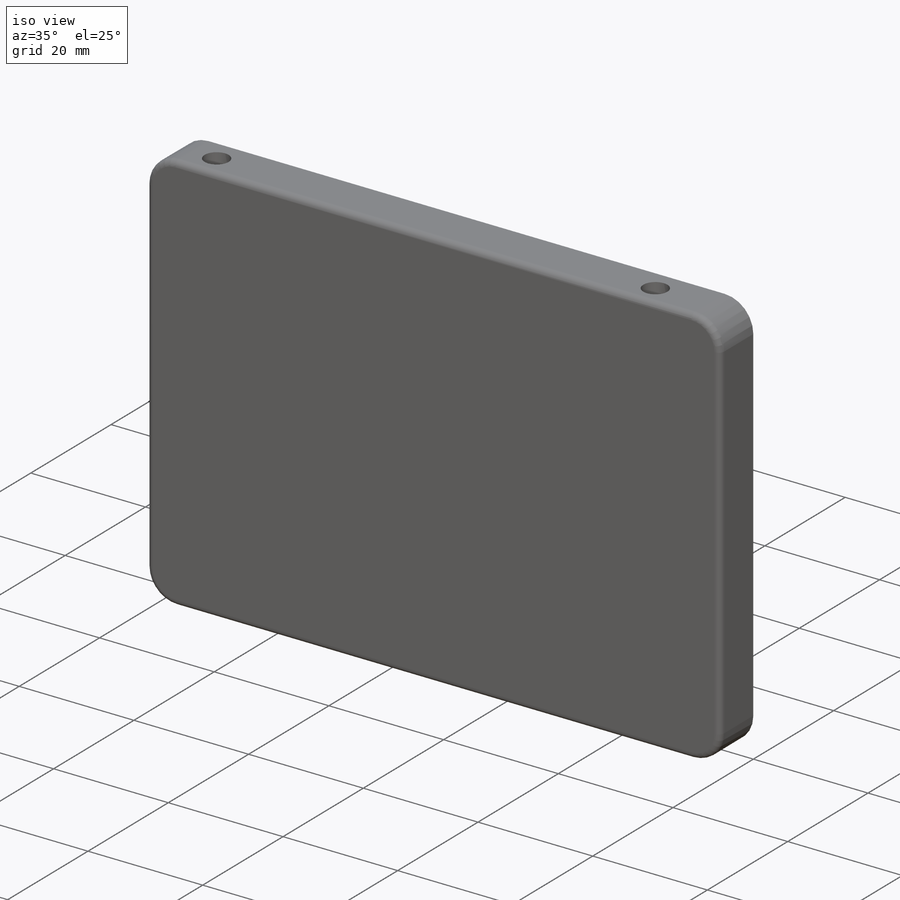
[diagram: iso view]
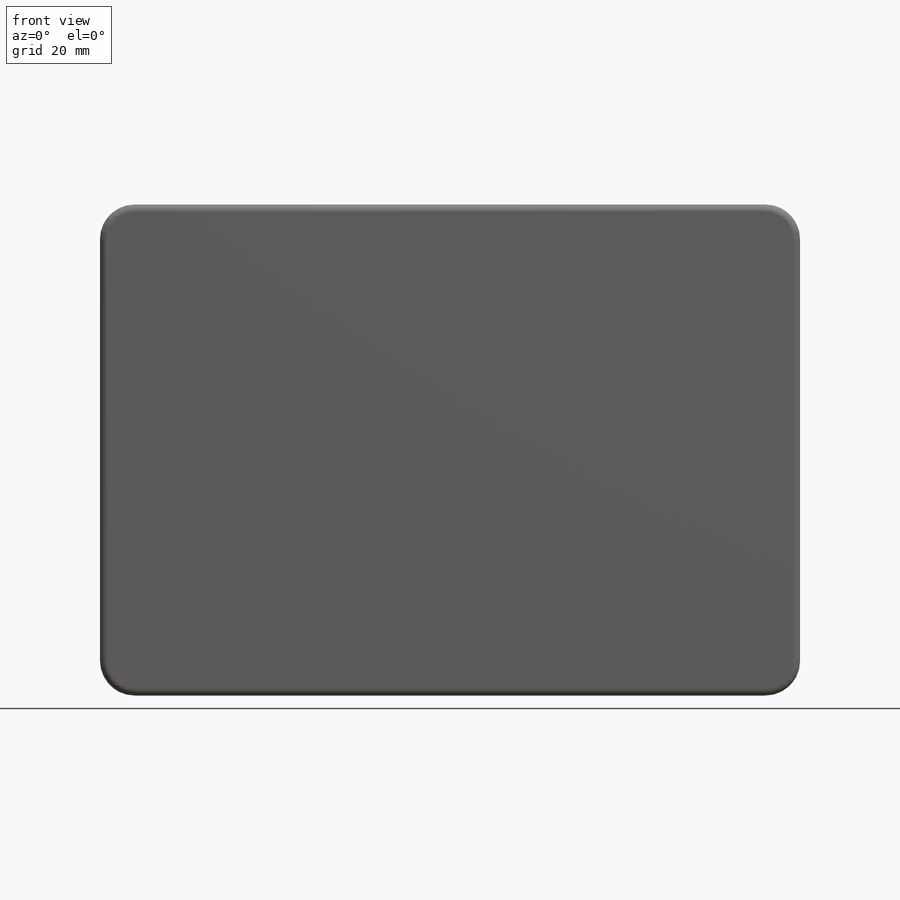
[diagram: front view]
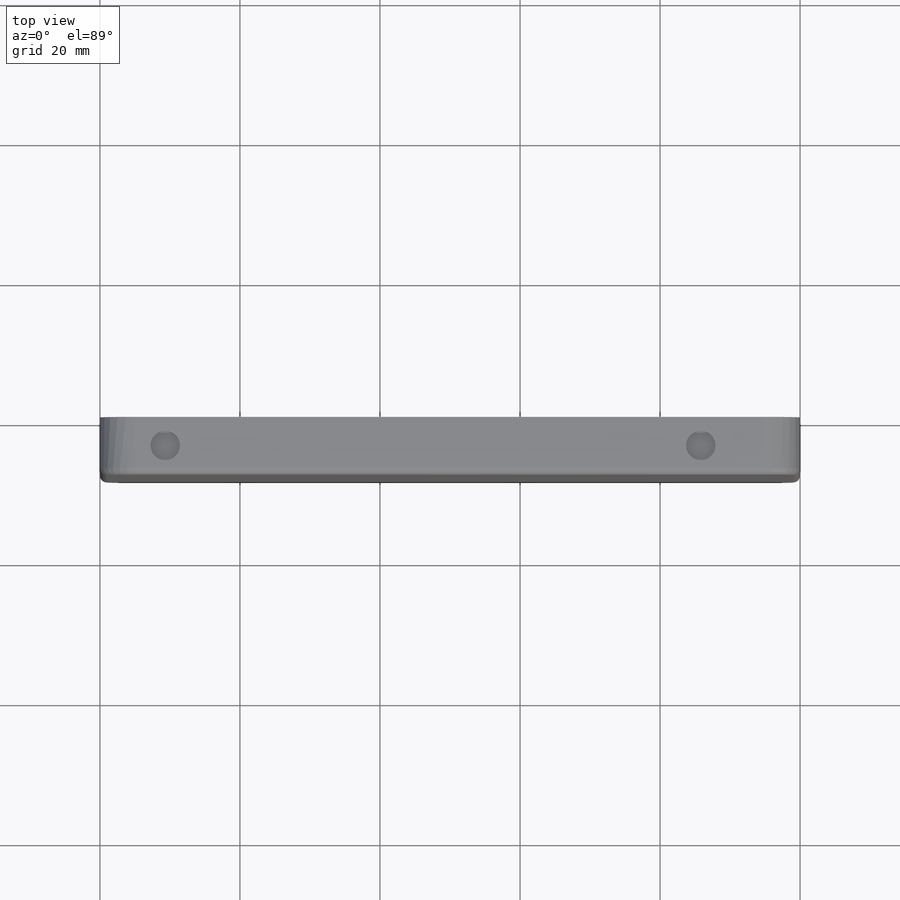
[diagram: top view]
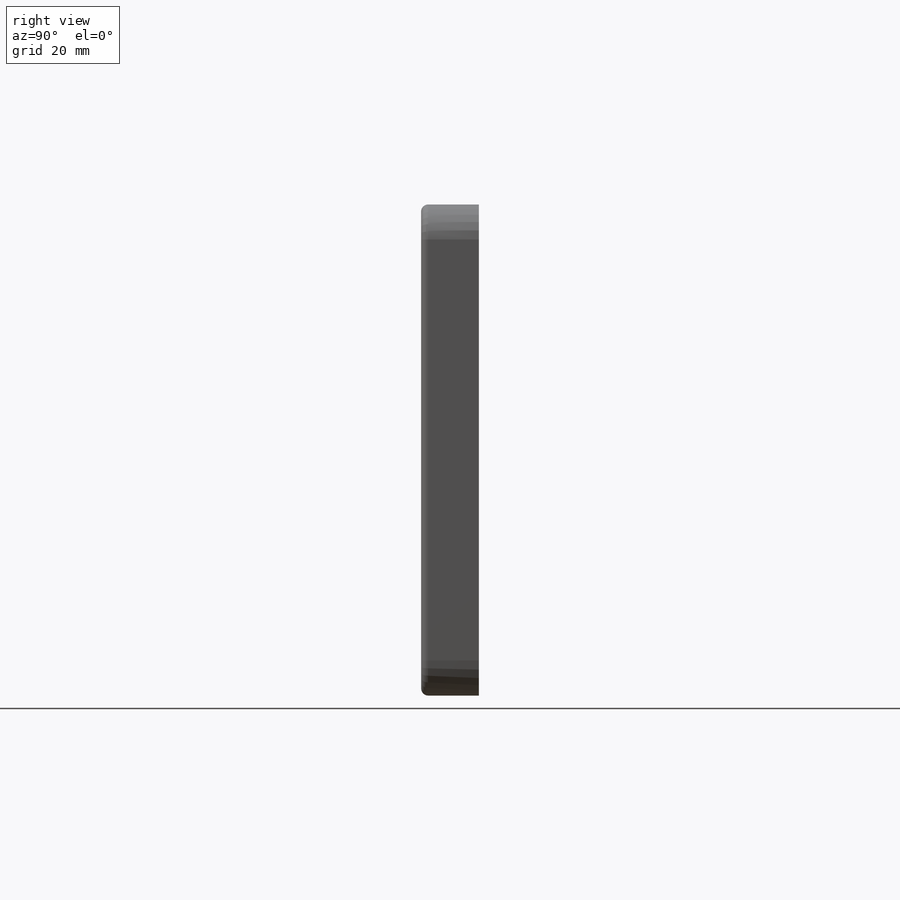
[diagram: right view]
SOLIDWORKS PART (.sldprt)
format: sldprt  version: not decoded by parser v0  size: 253,440 bytes
history: native  units: mm
features: sketch x3, fillet x2, cut_extrude x2, mirror x2, material x1, extrude x1, plane x1 (+12 scaffold rows collapsed)
feature tree (24):
  scaffold x12  (default folders/planes/origin — collapsed)
  material  "Material <not specified>"
  sketch  "Sketch2"  dims[D1=70.15mm D2=100.0mm]
  extrude  "Boss-Extrude1"  Depth=8.25mm
  fillet  "Fillet1"  Radius=5mm
  sketch  "Sketch3"  dims[D1=4.2mm D2=9.31mm D3=76.5mm]
  cut_extrude  "Cut-Extrude1"  Depth=2mm
  mirror  "Mirror1"
  fillet  "Fillet2"  Radius=1mm
  sketch  "Sketch4"  dims[D1=4.0mm D2=4.15mm]
  plane  "Plane1"
  cut_extrude  "Cut-Extrude2"  Depth=2mm
  mirror  "Mirror2"
decode coverage: 8 of 10 modeling features carry decoded parameters
note: suppression state not decoded; provenance and decode notes live in map.json
